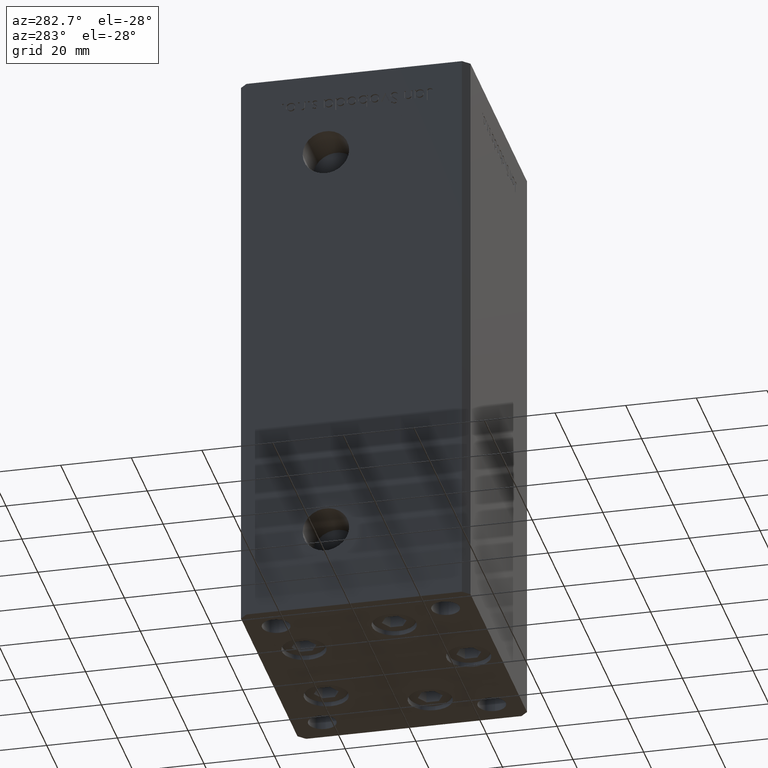
[diagram: clean part render]
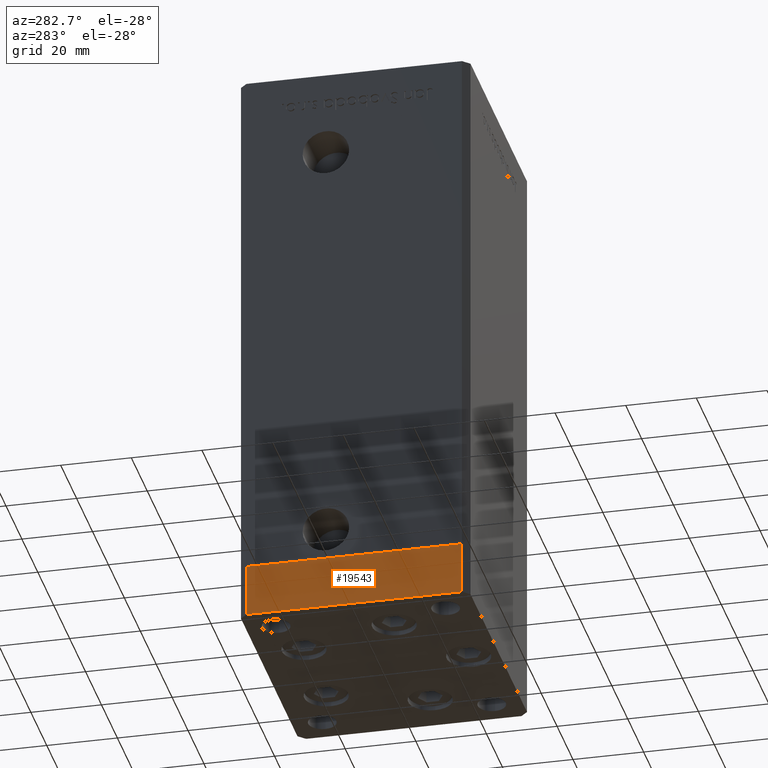
[diagram: same view with one face highlighted and labeled with its STEP entity id]
A machine part, auxiliary view. The second image highlights one B-rep face of the part: STEP entity #19543.
In plain terms, the highlighted planar face has unit normal (-1, 0, 0).
Its self-contained STEP definition (entity closure, byte-faithful):
#1405 = DIRECTION ( 'NONE',  ( 0.000000000000000000, 0.000000000000000000, 1.000000000000000000 ) ) ;
#8916 = DIRECTION ( 'NONE',  ( 1.000000000000000000, 1.478780668045803018E-15, -0.000000000000000000 ) ) ;
#9692 = PLANE ( 'NONE',  #12101 ) ;
#10700 = CARTESIAN_POINT ( 'NONE',  ( 37.50000000000001421, -30.50000000000000711, -15.00000000000000000 ) ) ;
#11908 = VERTEX_POINT ( 'NONE', #18175 ) ;
#12101 = AXIS2_PLACEMENT_3D ( 'NONE', #17092, #8916, #16824 ) ;
#13020 = CARTESIAN_POINT ( 'NONE',  ( 37.50000000000001421, -30.50000000000000711, -15.00000000000000000 ) ) ;
#13100 = EDGE_CURVE ( 'NONE', #15325, #11908, #20938, .T. ) ;
#15325 = VERTEX_POINT ( 'NONE', #10700 ) ;
#15405 = DIRECTION ( 'NONE',  ( -1.478780668045802821E-15, 1.000000000000000000, 0.000000000000000000 ) ) ;
#16824 = DIRECTION ( 'NONE',  ( -1.478780668045803018E-15, 1.000000000000000000, 0.000000000000000000 ) ) ;
#17092 = CARTESIAN_POINT ( 'NONE',  ( 37.50000000000001421, -30.50000000000000711, -15.00000000000000000 ) ) ;
#17191 = CARTESIAN_POINT ( 'NONE',  ( 37.50000000000001421, -30.50000000000000711, -15.00000000000000000 ) ) ;
#18128 = CARTESIAN_POINT ( 'NONE',  ( 37.49999999999992184, 30.50000000000001066, -15.00000000000000000 ) ) ;
#18175 = CARTESIAN_POINT ( 'NONE',  ( 37.50000000000001421, -30.50000000000000711, 0.000000000000000000 ) ) ;
#19543 = ADVANCED_FACE ( 'NONE', ( #41875 ), #9692, .T. ) ;
#20840 = VERTEX_POINT ( 'NONE', #18128 ) ;
#20938 = LINE ( 'NONE', #13020, #22930 ) ;
#22930 = VECTOR ( 'NONE', #1405, 1000.000000000000000 ) ;
#23735 = VERTEX_POINT ( 'NONE', #28817 ) ;
#28659 = DIRECTION ( 'NONE',  ( 0.000000000000000000, 0.000000000000000000, 1.000000000000000000 ) ) ;
#28817 = CARTESIAN_POINT ( 'NONE',  ( 37.49999999999992184, 30.50000000000001066, 0.000000000000000000 ) ) ;
#29858 = LINE ( 'NONE', #17191, #48744 ) ;
#30134 = ORIENTED_EDGE ( 'NONE', *, *, #45548, .T. ) ;
#32274 = ORIENTED_EDGE ( 'NONE', *, *, #13100, .F. ) ;
#36338 = VECTOR ( 'NONE', #28659, 1000.000000000000000 ) ;
#37585 = EDGE_CURVE ( 'NONE', #15325, #20840, #29858, .T. ) ;
#37758 = DIRECTION ( 'NONE',  ( -1.478780668045802821E-15, 1.000000000000000000, 0.000000000000000000 ) ) ;
#40002 = LINE ( 'NONE', #45004, #36338 ) ;
#40810 = ORIENTED_EDGE ( 'NONE', *, *, #47408, .F. ) ;
#41875 = FACE_OUTER_BOUND ( 'NONE', #43515, .T. ) ;
#43515 = EDGE_LOOP ( 'NONE', ( #40810, #32274, #48913, #30134 ) ) ;
#43817 = VECTOR ( 'NONE', #15405, 1000.000000000000000 ) ;
#45004 = CARTESIAN_POINT ( 'NONE',  ( 37.49999999999992184, 30.50000000000001066, -15.00000000000000000 ) ) ;
#45548 = EDGE_CURVE ( 'NONE', #20840, #23735, #40002, .T. ) ;
#47073 = LINE ( 'NONE', #50765, #43817 ) ;
#47408 = EDGE_CURVE ( 'NONE', #11908, #23735, #47073, .T. ) ;
#48744 = VECTOR ( 'NONE', #37758, 1000.000000000000000 ) ;
#48913 = ORIENTED_EDGE ( 'NONE', *, *, #37585, .T. ) ;
#50765 = CARTESIAN_POINT ( 'NONE',  ( 37.50000000000001421, -30.50000000000000711, 0.000000000000000000 ) ) ;